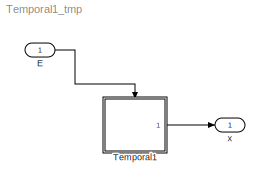
MODEL Temporal1_tmp
KIND model
BLOCK [Inport] E
  IconDisplay = Port number
  SID = 2
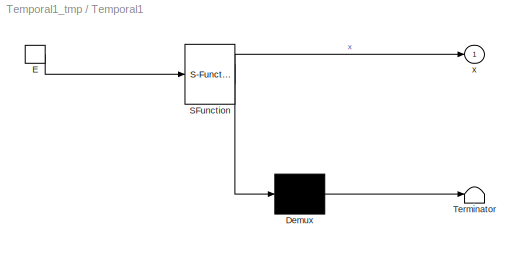
BLOCK [SubSystem] Temporal1
  ErrorFcn = Stateflow.Translate.translate
  PermitHierarchicalResolution = ParametersOnly
  Ports = [0, 1, 0, 1]
  RequestExecContextInheritance = off
  SFBlockType = Chart
  SID = 1
  TreatAsAtomicUnit = on
  Variant = off
BLOCK [Demux] Temporal1/ Demux 
  Outputs = 1
  Ports = [1, 1]
  SID = 1::10
BLOCK [S-Function] Temporal1/ SFunction 
  EnableBusSupport = off
  FunctionName = sf_sfun
  PortCounts = [1 2]
  Ports = [1, 2]
  SFunctionDeploymentMode = off
  SID = 1::9
  Tag = Stateflow S-Function Temporal1_tmp 1
BLOCK [Terminator] Temporal1/ Terminator 
  SID = 1::11
BLOCK [TriggerPort] Temporal1/E
  Ports = [0, 1]
  SID = 1::1
  ShowOutputPort = on
BLOCK [Outport] Temporal1/x
  IconDisplay = Port number
  SID = 1::5
BLOCK [Outport] x
  IconDisplay = Port number
  SID = 3
LINE E:1 -> Temporal1:trigger
LINE Temporal1/ Demux :1 -> Temporal1/ Terminator :1
LINE Temporal1/ SFunction :1 -> Temporal1/ Demux :1
LINE Temporal1/ SFunction :2 -> Temporal1/x:1
LINE Temporal1/E:1 -> Temporal1/ SFunction :1
LINE Temporal1:1 -> x:1
CHART Temporal1 states=2 transitions=3
  STATE_LABEL 'A/\\nen : x++;'
  STATE_LABEL 'B/\\nen : x++;'
